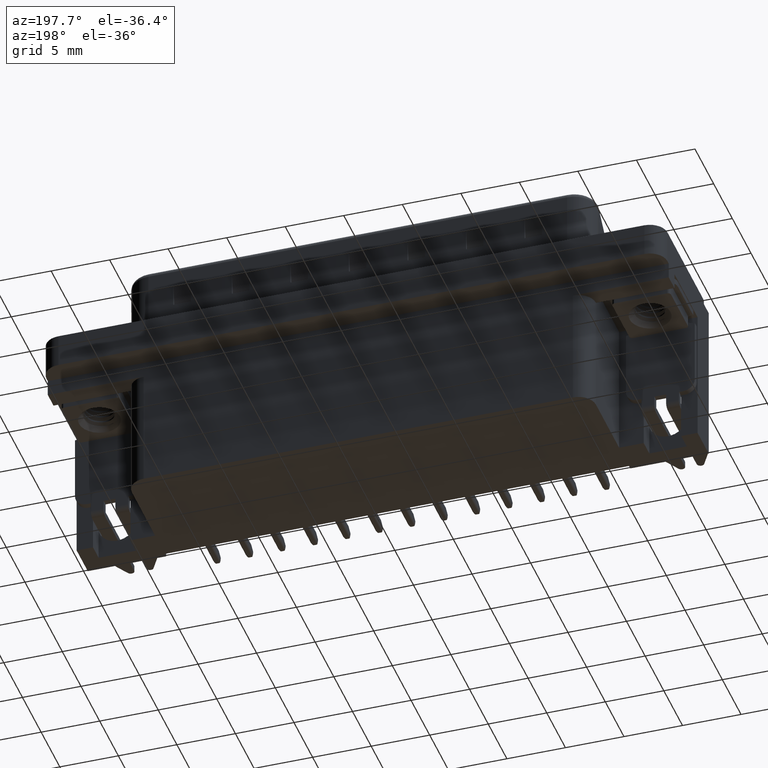
[diagram: clean part render]
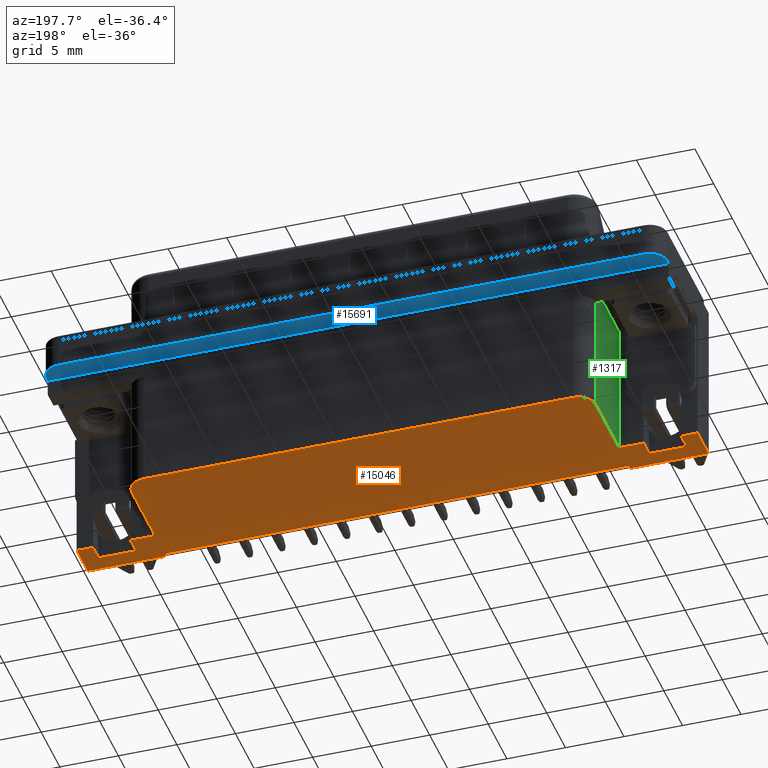
[diagram: same view with three faces highlighted in distinct colors, each labeled with its STEP entity id]
A machine part, auxiliary view with three faces highlighted in distinct colors.
Their STEP definitions:

[orange] entity #15046 — the highlighted planar face has unit normal (0, 0, -1).
#58 = FACE_OUTER_BOUND ( 'NONE', #14990, .T. ) ;
#814 = VERTEX_POINT ( 'NONE', #6002 ) ;
#823 = CARTESIAN_POINT ( 'NONE',  ( 41.84000000000001762, 2.925000000000001599, -14.19999999999999929 ) ) ;
#1076 = ORIENTED_EDGE ( 'NONE', *, *, #11311, .F. ) ;
#1629 = DIRECTION ( 'NONE',  ( 1.000000000000000000, 0.0000000000000000000, 0.0000000000000000000 ) ) ;
#1678 = EDGE_CURVE ( 'NONE', #10604, #19854, #4428, .T. ) ;
#1980 = EDGE_CURVE ( 'NONE', #14074, #8602, #5952, .T. ) ;
#2137 = VERTEX_POINT ( 'NONE', #16696 ) ;
#2357 = CARTESIAN_POINT ( 'NONE',  ( 3.700000000000007727, -3.295000000000000373, -14.19999999999999929 ) ) ;
#2474 = CARTESIAN_POINT ( 'NONE',  ( 3.700000000000007727, -3.295000000000000373, -14.19999999999999929 ) ) ;
#2504 = LINE ( 'NONE', #8083, #13027 ) ;
#2527 = LINE ( 'NONE', #9620, #5312 ) ;
#2614 = EDGE_CURVE ( 'NONE', #10498, #814, #12748, .T. ) ;
#2696 = ORIENTED_EDGE ( 'NONE', *, *, #16626, .T. ) ;
#2744 = VERTEX_POINT ( 'NONE', #4109 ) ;
#3089 = LINE ( 'NONE', #6354, #16194 ) ;
#3150 = LINE ( 'NONE', #14070, #9548 ) ;
#3282 = CARTESIAN_POINT ( 'NONE',  ( 43.34000000000001762, -3.295000000000000373, -14.19999999999999929 ) ) ;
#3321 = CARTESIAN_POINT ( 'NONE',  ( 45.43999999999999773, -3.295000000000001705, -14.19999999999999929 ) ) ;
#3324 = CARTESIAN_POINT ( 'NONE',  ( 41.84000000000001762, 4.425000000000001599, -14.19999999999999929 ) ) ;
#3419 = CARTESIAN_POINT ( 'NONE',  ( 1.600000000000005418, -4.795000000000002593, -14.19999999999999929 ) ) ;
#3775 = ORIENTED_EDGE ( 'NONE', *, *, #16082, .F. ) ;
#4109 = CARTESIAN_POINT ( 'NONE',  ( 3.700000000000008171, 2.925000000000001155, -14.19999999999999929 ) ) ;
#4364 = VECTOR ( 'NONE', #10376, 1000.000000000000000 ) ;
#4428 = LINE ( 'NONE', #6059, #14498 ) ;
#4810 = CARTESIAN_POINT ( 'NONE',  ( -1.599999999999998757, -4.795000000000001705, -14.19999999999999929 ) ) ;
#5142 = ORIENTED_EDGE ( 'NONE', *, *, #6683, .T. ) ;
#5187 = CARTESIAN_POINT ( 'NONE',  ( 3.700000000000012612, -5.925000000000001599, -14.19999999999999929 ) ) ;
#5238 = VECTOR ( 'NONE', #20108, 1000.000000000000000 ) ;
#5252 = CIRCLE ( 'NONE', #18580, 1.500000000000001332 ) ;
#5312 = VECTOR ( 'NONE', #16693, 1000.000000000000000 ) ;
#5360 = EDGE_CURVE ( 'NONE', #13358, #9676, #15003, .T. ) ;
#5569 = DIRECTION ( 'NONE',  ( -1.000000000000000000, 0.0000000000000000000, 0.0000000000000000000 ) ) ;
#5582 = CARTESIAN_POINT ( 'NONE',  ( 5.200000000000007283, 4.425000000000000711, -14.19999999999999929 ) ) ;
#5862 = CARTESIAN_POINT ( 'NONE',  ( 3.700000000000008171, -5.925000000000003375, -14.19999999999999929 ) ) ;
#5952 = LINE ( 'NONE', #5582, #8542 ) ;
#6002 = CARTESIAN_POINT ( 'NONE',  ( 1.599999999999996314, -3.295000000000001705, -14.19999999999999929 ) ) ;
#6059 = CARTESIAN_POINT ( 'NONE',  ( 3.700000000000012612, -5.925000000000001599, -14.19999999999999929 ) ) ;
#6113 = DIRECTION ( 'NONE',  ( -0.0000000000000000000, 1.000000000000000000, -0.0000000000000000000 ) ) ;
#6177 = ORIENTED_EDGE ( 'NONE', *, *, #12837, .F. ) ;
#6321 = CARTESIAN_POINT ( 'NONE',  ( 5.200000000000007283, -4.795000000000002593, -14.19999999999999929 ) ) ;
#6336 = EDGE_CURVE ( 'NONE', #11797, #18032, #2527, .T. ) ;
#6354 = CARTESIAN_POINT ( 'NONE',  ( 43.34000000000001762, -3.295000000000000373, -14.19999999999999929 ) ) ;
#6363 = CARTESIAN_POINT ( 'NONE',  ( 50.03999999999999915, -6.275000000000000355, -14.19999999999999929 ) ) ;
#6683 = EDGE_CURVE ( 'NONE', #11797, #22110, #2504, .T. ) ;
#6891 = LINE ( 'NONE', #3282, #18188 ) ;
#6949 = VECTOR ( 'NONE', #14239, 1000.000000000000000 ) ;
#7263 = DIRECTION ( 'NONE',  ( 0.0000000000000000000, 0.0000000000000000000, -1.000000000000000000 ) ) ;
#7388 = EDGE_CURVE ( 'NONE', #15875, #2744, #11394, .T. ) ;
#7501 = PLANE ( 'NONE',  #9687 ) ;
#7739 = CARTESIAN_POINT ( 'NONE',  ( 3.700000000000007727, -3.295000000000000373, -14.19999999999999929 ) ) ;
#8083 = CARTESIAN_POINT ( 'NONE',  ( 48.64000000000000767, -4.795000000000001705, -14.19999999999999929 ) ) ;
#8165 = LINE ( 'NONE', #10985, #14396 ) ;
#8437 = EDGE_CURVE ( 'NONE', #22110, #13521, #3089, .T. ) ;
#8484 = VECTOR ( 'NONE', #10902, 1000.000000000000000 ) ;
#8542 = VECTOR ( 'NONE', #1629, 1000.000000000000000 ) ;
#8602 = VERTEX_POINT ( 'NONE', #3324 ) ;
#8717 = VERTEX_POINT ( 'NONE', #10639 ) ;
#9448 = ORIENTED_EDGE ( 'NONE', *, *, #21922, .T. ) ;
#9535 = ORIENTED_EDGE ( 'NONE', *, *, #2614, .T. ) ;
#9548 = VECTOR ( 'NONE', #10352, 1000.000000000000000 ) ;
#9620 = CARTESIAN_POINT ( 'NONE',  ( 5.200000000000007283, -4.795000000000002593, -14.19999999999999929 ) ) ;
#9676 = VERTEX_POINT ( 'NONE', #14713 ) ;
#9687 = AXIS2_PLACEMENT_3D ( 'NONE', #14562, #7263, #19430 ) ;
#10017 = ORIENTED_EDGE ( 'NONE', *, *, #11577, .T. ) ;
#10141 = VERTEX_POINT ( 'NONE', #18056 ) ;
#10352 = DIRECTION ( 'NONE',  ( 1.000000000000000000, 3.883709274574940726E-16, -0.0000000000000000000 ) ) ;
#10366 = DIRECTION ( 'NONE',  ( -0.0000000000000000000, -1.000000000000000000, -0.0000000000000000000 ) ) ;
#10376 = DIRECTION ( 'NONE',  ( -2.910609859021490822E-16, 1.000000000000000000, -0.0000000000000000000 ) ) ;
#10498 = VERTEX_POINT ( 'NONE', #3419 ) ;
#10604 = VERTEX_POINT ( 'NONE', #5862 ) ;
#10639 = CARTESIAN_POINT ( 'NONE',  ( 43.34000000000000341, -5.925000000000009592, -14.19999999999999929 ) ) ;
#10764 = DIRECTION ( 'NONE',  ( 1.000000000000000000, 3.883709274574940726E-16, -0.0000000000000000000 ) ) ;
#10885 = CARTESIAN_POINT ( 'NONE',  ( 1.599999999999996314, -4.795000000000001705, -14.19999999999999929 ) ) ;
#10902 = DIRECTION ( 'NONE',  ( 1.000000000000000000, -3.883709274574951573E-16, 0.0000000000000000000 ) ) ;
#10985 = CARTESIAN_POINT ( 'NONE',  ( 43.34000000000000341, -5.925000000000009592, -14.19999999999999929 ) ) ;
#11046 = DIRECTION ( 'NONE',  ( -1.970636860084006915E-16, -1.000000000000000000, -0.0000000000000000000 ) ) ;
#11311 = EDGE_CURVE ( 'NONE', #18032, #19522, #15975, .T. ) ;
#11384 = DIRECTION ( 'NONE',  ( -1.000000000000000000, 0.0000000000000000000, 0.0000000000000000000 ) ) ;
#11394 = LINE ( 'NONE', #2357, #16506 ) ;
#11414 = LINE ( 'NONE', #21986, #5238 ) ;
#11436 = CARTESIAN_POINT ( 'NONE',  ( -2.999999999999993339, -3.295000000000002593, -14.19999999999999929 ) ) ;
#11544 = EDGE_CURVE ( 'NONE', #19139, #9676, #13972, .T. ) ;
#11571 = EDGE_CURVE ( 'NONE', #2137, #13358, #12115, .T. ) ;
#11577 = EDGE_CURVE ( 'NONE', #814, #15875, #3150, .T. ) ;
#11748 = VERTEX_POINT ( 'NONE', #12563 ) ;
#11760 = DIRECTION ( 'NONE',  ( 1.000000000000000000, -0.0000000000000000000, 0.0000000000000000000 ) ) ;
#11797 = VERTEX_POINT ( 'NONE', #12686 ) ;
#12115 = LINE ( 'NONE', #22796, #4364 ) ;
#12190 = ORIENTED_EDGE ( 'NONE', *, *, #6336, .F. ) ;
#12541 = VERTEX_POINT ( 'NONE', #6363 ) ;
#12563 = CARTESIAN_POINT ( 'NONE',  ( 43.34000000000001762, 2.925000000000001599, -14.19999999999999929 ) ) ;
#12686 = CARTESIAN_POINT ( 'NONE',  ( 48.64000000000000767, -4.795000000000002593, -14.19999999999999929 ) ) ;
#12748 = LINE ( 'NONE', #10885, #13046 ) ;
#12771 = ORIENTED_EDGE ( 'NONE', *, *, #1980, .T. ) ;
#12837 = EDGE_CURVE ( 'NONE', #8717, #10141, #8165, .T. ) ;
#12953 = VECTOR ( 'NONE', #19304, 1000.000000000000000 ) ;
#13017 = ORIENTED_EDGE ( 'NONE', *, *, #15970, .T. ) ;
#13027 = VECTOR ( 'NONE', #6113, 1000.000000000000000 ) ;
#13042 = DIRECTION ( 'NONE',  ( 6.972361237848901083E-17, 1.000000000000000000, 0.0000000000000000000 ) ) ;
#13046 = VECTOR ( 'NONE', #19801, 1000.000000000000000 ) ;
#13150 = CARTESIAN_POINT ( 'NONE',  ( 48.64000000000000767, -3.295000000000001705, -14.19999999999999929 ) ) ;
#13153 = ORIENTED_EDGE ( 'NONE', *, *, #7388, .T. ) ;
#13202 = DIRECTION ( 'NONE',  ( 1.000000000000000000, -3.883709274574951573E-16, 0.0000000000000000000 ) ) ;
#13358 = VERTEX_POINT ( 'NONE', #11436 ) ;
#13521 = VERTEX_POINT ( 'NONE', #14110 ) ;
#13972 = LINE ( 'NONE', #4810, #20645 ) ;
#13974 = CARTESIAN_POINT ( 'NONE',  ( 3.700000000000012612, -6.275000000000001243, -14.19999999999999929 ) ) ;
#14030 = CARTESIAN_POINT ( 'NONE',  ( 50.03999999999999915, -6.275000000000000355, -14.19999999999999929 ) ) ;
#14070 = CARTESIAN_POINT ( 'NONE',  ( 3.700000000000007727, -3.295000000000000373, -14.19999999999999929 ) ) ;
#14074 = VERTEX_POINT ( 'NONE', #18213 ) ;
#14110 = CARTESIAN_POINT ( 'NONE',  ( 50.03999999999999915, -3.295000000000002593, -14.19999999999999929 ) ) ;
#14149 = LINE ( 'NONE', #14030, #19213 ) ;
#14239 = DIRECTION ( 'NONE',  ( -0.0000000000000000000, 1.000000000000000000, -0.0000000000000000000 ) ) ;
#14396 = VECTOR ( 'NONE', #14586, 1000.000000000000000 ) ;
#14498 = VECTOR ( 'NONE', #11046, 1000.000000000000000 ) ;
#14562 = CARTESIAN_POINT ( 'NONE',  ( 5.200000000000007283, 2.925000000000001155, -14.19999999999999929 ) ) ;
#14586 = DIRECTION ( 'NONE',  ( -1.970636860084006915E-16, -1.000000000000000000, -0.0000000000000000000 ) ) ;
#14713 = CARTESIAN_POINT ( 'NONE',  ( -1.599999999999998757, -3.295000000000001705, -14.19999999999999929 ) ) ;
#14716 = LINE ( 'NONE', #17864, #8484 ) ;
#14981 = DIRECTION ( 'NONE',  ( 0.0000000000000000000, 0.0000000000000000000, -1.000000000000000000 ) ) ;
#14988 = ORIENTED_EDGE ( 'NONE', *, *, #8437, .T. ) ;
#14990 = EDGE_LOOP ( 'NONE', ( #1076, #12190, #5142, #14988, #20549, #9448, #6177, #3775, #18195, #17356, #20646, #17487, #15041, #19402, #9535, #10017, #13153, #13017, #12771, #18686, #2696, #18689 ) ) ;
#15003 = LINE ( 'NONE', #2474, #15513 ) ;
#15041 = ORIENTED_EDGE ( 'NONE', *, *, #11544, .F. ) ;
#15046 = ADVANCED_FACE ( 'NONE', ( #58 ), #7501, .T. ) ;
#15152 = DIRECTION ( 'NONE',  ( 0.0000000000000000000, 0.0000000000000000000, -1.000000000000000000 ) ) ;
#15465 = VERTEX_POINT ( 'NONE', #16504 ) ;
#15482 = LINE ( 'NONE', #6321, #16456 ) ;
#15513 = VECTOR ( 'NONE', #10764, 1000.000000000000000 ) ;
#15524 = EDGE_CURVE ( 'NONE', #8602, #11748, #5252, .T. ) ;
#15731 = DIRECTION ( 'NONE',  ( 1.000000000000000000, -1.969287497955508259E-16, 0.0000000000000000000 ) ) ;
#15875 = VERTEX_POINT ( 'NONE', #7739 ) ;
#15970 = EDGE_CURVE ( 'NONE', #2744, #14074, #22245, .T. ) ;
#15975 = LINE ( 'NONE', #17500, #6949 ) ;
#16001 = VECTOR ( 'NONE', #15731, 1000.000000000000000 ) ;
#16082 = EDGE_CURVE ( 'NONE', #10604, #8717, #22459, .T. ) ;
#16194 = VECTOR ( 'NONE', #13202, 1000.000000000000000 ) ;
#16413 = EDGE_CURVE ( 'NONE', #13521, #12541, #11414, .T. ) ;
#16456 = VECTOR ( 'NONE', #11760, 1000.000000000000000 ) ;
#16504 = CARTESIAN_POINT ( 'NONE',  ( 43.34000000000001762, -3.295000000000000373, -14.19999999999999929 ) ) ;
#16506 = VECTOR ( 'NONE', #13042, 1000.000000000000000 ) ;
#16626 = EDGE_CURVE ( 'NONE', #11748, #15465, #6891, .T. ) ;
#16693 = DIRECTION ( 'NONE',  ( -1.000000000000000000, 0.0000000000000000000, 0.0000000000000000000 ) ) ;
#16696 = CARTESIAN_POINT ( 'NONE',  ( -2.999999999999992450, -6.275000000000000355, -14.19999999999999929 ) ) ;
#17009 = CARTESIAN_POINT ( 'NONE',  ( 5.200000000000007283, 2.925000000000001155, -14.19999999999999929 ) ) ;
#17043 = CARTESIAN_POINT ( 'NONE',  ( 45.43999999999999773, -4.795000000000001705, -14.19999999999999929 ) ) ;
#17356 = ORIENTED_EDGE ( 'NONE', *, *, #22936, .T. ) ;
#17487 = ORIENTED_EDGE ( 'NONE', *, *, #5360, .T. ) ;
#17500 = CARTESIAN_POINT ( 'NONE',  ( 45.43999999999999773, -4.795000000000001705, -14.19999999999999929 ) ) ;
#17755 = CARTESIAN_POINT ( 'NONE',  ( -1.599999999999998757, -4.795000000000001705, -14.19999999999999929 ) ) ;
#17864 = CARTESIAN_POINT ( 'NONE',  ( 43.34000000000001762, -3.295000000000000373, -14.19999999999999929 ) ) ;
#18032 = VERTEX_POINT ( 'NONE', #17043 ) ;
#18056 = CARTESIAN_POINT ( 'NONE',  ( 43.34000000000000341, -6.275000000000009237, -14.19999999999999929 ) ) ;
#18188 = VECTOR ( 'NONE', #10366, 1000.000000000000000 ) ;
#18195 = ORIENTED_EDGE ( 'NONE', *, *, #1678, .T. ) ;
#18213 = CARTESIAN_POINT ( 'NONE',  ( 5.200000000000007283, 4.425000000000000711, -14.19999999999999929 ) ) ;
#18580 = AXIS2_PLACEMENT_3D ( 'NONE', #823, #14981, #11384 ) ;
#18686 = ORIENTED_EDGE ( 'NONE', *, *, #15524, .T. ) ;
#18689 = ORIENTED_EDGE ( 'NONE', *, *, #21517, .T. ) ;
#19139 = VERTEX_POINT ( 'NONE', #17755 ) ;
#19213 = VECTOR ( 'NONE', #5569, 1000.000000000000000 ) ;
#19304 = DIRECTION ( 'NONE',  ( -1.000000000000000000, 0.0000000000000000000, 0.0000000000000000000 ) ) ;
#19402 = ORIENTED_EDGE ( 'NONE', *, *, #19798, .T. ) ;
#19412 = CARTESIAN_POINT ( 'NONE',  ( 50.03999999999999915, -6.275000000000000355, -14.19999999999999929 ) ) ;
#19430 = DIRECTION ( 'NONE',  ( -1.000000000000000000, 0.0000000000000000000, -0.0000000000000000000 ) ) ;
#19522 = VERTEX_POINT ( 'NONE', #3321 ) ;
#19798 = EDGE_CURVE ( 'NONE', #19139, #10498, #15482, .T. ) ;
#19801 = DIRECTION ( 'NONE',  ( -0.0000000000000000000, 1.000000000000000000, -0.0000000000000000000 ) ) ;
#19854 = VERTEX_POINT ( 'NONE', #13974 ) ;
#20108 = DIRECTION ( 'NONE',  ( 0.0000000000000000000, -1.000000000000000000, 0.0000000000000000000 ) ) ;
#20365 = DIRECTION ( 'NONE',  ( -1.000000000000000000, 0.0000000000000000000, 0.0000000000000000000 ) ) ;
#20549 = ORIENTED_EDGE ( 'NONE', *, *, #16413, .T. ) ;
#20645 = VECTOR ( 'NONE', #21037, 1000.000000000000000 ) ;
#20646 = ORIENTED_EDGE ( 'NONE', *, *, #11571, .T. ) ;
#20815 = LINE ( 'NONE', #19412, #12953 ) ;
#21037 = DIRECTION ( 'NONE',  ( -0.0000000000000000000, 1.000000000000000000, -0.0000000000000000000 ) ) ;
#21194 = AXIS2_PLACEMENT_3D ( 'NONE', #17009, #15152, #20365 ) ;
#21517 = EDGE_CURVE ( 'NONE', #15465, #19522, #14716, .T. ) ;
#21922 = EDGE_CURVE ( 'NONE', #12541, #10141, #20815, .T. ) ;
#21986 = CARTESIAN_POINT ( 'NONE',  ( 50.03999999999999915, -3.295000000000002593, -14.19999999999999929 ) ) ;
#22110 = VERTEX_POINT ( 'NONE', #13150 ) ;
#22245 = CIRCLE ( 'NONE', #21194, 1.499999999999999556 ) ;
#22459 = LINE ( 'NONE', #5187, #16001 ) ;
#22796 = CARTESIAN_POINT ( 'NONE',  ( -2.999999999999993339, -3.295000000000002593, -14.19999999999999929 ) ) ;
#22936 = EDGE_CURVE ( 'NONE', #19854, #2137, #14149, .T. ) ;

[blue] entity #15691 — the highlighted planar face has unit normal (0, 0, -1).
#309 = CARTESIAN_POINT ( 'NONE',  ( 50.03999999999999915, 4.775000000000000355, -2.500000000000000000 ) ) ;
#594 = CARTESIAN_POINT ( 'NONE',  ( -1.499999999999992228, 6.275000000000000355, -2.500000000000000000 ) ) ;
#1357 = CARTESIAN_POINT ( 'NONE',  ( 48.53999999999999915, 4.775000000000000355, -2.500000000000000000 ) ) ;
#1725 = DIRECTION ( 'NONE',  ( -1.000000000000000000, -0.0000000000000000000, -0.0000000000000000000 ) ) ;
#1927 = EDGE_LOOP ( 'NONE', ( #17170, #6090, #8170, #11837, #4834, #18095 ) ) ;
#2277 = AXIS2_PLACEMENT_3D ( 'NONE', #20651, #11833, #4765 ) ;
#4765 = DIRECTION ( 'NONE',  ( -1.000000000000000000, 0.0000000000000000000, 0.0000000000000000000 ) ) ;
#4805 = AXIS2_PLACEMENT_3D ( 'NONE', #1357, #15641, #20845 ) ;
#4834 = ORIENTED_EDGE ( 'NONE', *, *, #5113, .F. ) ;
#4937 = EDGE_CURVE ( 'NONE', #21823, #12764, #11009, .T. ) ;
#5113 = EDGE_CURVE ( 'NONE', #12764, #18884, #7722, .T. ) ;
#5734 = VERTEX_POINT ( 'NONE', #11713 ) ;
#6090 = ORIENTED_EDGE ( 'NONE', *, *, #8881, .F. ) ;
#6408 = CARTESIAN_POINT ( 'NONE',  ( 48.53999999999999915, 6.275000000000001243, -2.500000000000000000 ) ) ;
#6618 = VECTOR ( 'NONE', #21914, 1000.000000000000000 ) ;
#7273 = CARTESIAN_POINT ( 'NONE',  ( -2.999999999999992450, -6.275000000000000355, -2.500000000000000000 ) ) ;
#7722 = CIRCLE ( 'NONE', #4805, 1.500000000000001332 ) ;
#7762 = CARTESIAN_POINT ( 'NONE',  ( -2.999999999999993339, 4.425000000000000711, -2.500000000000000000 ) ) ;
#8064 = VECTOR ( 'NONE', #1725, 1000.000000000000000 ) ;
#8170 = ORIENTED_EDGE ( 'NONE', *, *, #12695, .F. ) ;
#8881 = EDGE_CURVE ( 'NONE', #5734, #19309, #9578, .T. ) ;
#9130 = DIRECTION ( 'NONE',  ( -1.000000000000000000, 0.0000000000000000000, 0.0000000000000000000 ) ) ;
#9274 = DIRECTION ( 'NONE',  ( 0.0000000000000000000, 1.000000000000000000, 0.0000000000000000000 ) ) ;
#9578 = LINE ( 'NONE', #7273, #10634 ) ;
#9589 = EDGE_CURVE ( 'NONE', #18884, #16922, #15767, .T. ) ;
#10634 = VECTOR ( 'NONE', #14339, 1000.000000000000000 ) ;
#10670 = CARTESIAN_POINT ( 'NONE',  ( -1.499999999999992228, 6.275000000000000355, -2.500000000000000000 ) ) ;
#11009 = LINE ( 'NONE', #18083, #11299 ) ;
#11299 = VECTOR ( 'NONE', #9274, 1000.000000000000000 ) ;
#11713 = CARTESIAN_POINT ( 'NONE',  ( -2.999999999999992450, 4.775000000000000355, -2.500000000000000000 ) ) ;
#11833 = DIRECTION ( 'NONE',  ( -0.0000000000000000000, 0.0000000000000000000, -1.000000000000000000 ) ) ;
#11837 = ORIENTED_EDGE ( 'NONE', *, *, #9589, .F. ) ;
#12184 = CIRCLE ( 'NONE', #19588, 1.500000000000000000 ) ;
#12427 = EDGE_CURVE ( 'NONE', #19309, #21823, #14948, .T. ) ;
#12695 = EDGE_CURVE ( 'NONE', #16922, #5734, #12184, .T. ) ;
#12764 = VERTEX_POINT ( 'NONE', #309 ) ;
#14339 = DIRECTION ( 'NONE',  ( -0.0000000000000000000, -1.000000000000000000, -0.0000000000000000000 ) ) ;
#14948 = LINE ( 'NONE', #7762, #6618 ) ;
#15641 = DIRECTION ( 'NONE',  ( 0.0000000000000000000, 0.0000000000000000000, 1.000000000000000000 ) ) ;
#15691 = ADVANCED_FACE ( 'NONE', ( #19570 ), #16950, .T. ) ;
#15750 = DIRECTION ( 'NONE',  ( 0.0000000000000000000, 0.0000000000000000000, 1.000000000000000000 ) ) ;
#15767 = LINE ( 'NONE', #10670, #8064 ) ;
#16794 = CARTESIAN_POINT ( 'NONE',  ( -2.999999999999992450, 4.425000000000000711, -2.500000000000000000 ) ) ;
#16922 = VERTEX_POINT ( 'NONE', #594 ) ;
#16950 = PLANE ( 'NONE',  #2277 ) ;
#17170 = ORIENTED_EDGE ( 'NONE', *, *, #12427, .F. ) ;
#17607 = CARTESIAN_POINT ( 'NONE',  ( -1.499999999999992228, 4.775000000000000355, -2.500000000000000000 ) ) ;
#18083 = CARTESIAN_POINT ( 'NONE',  ( 50.03999999999999915, -6.275000000000000355, -2.500000000000000000 ) ) ;
#18095 = ORIENTED_EDGE ( 'NONE', *, *, #4937, .F. ) ;
#18884 = VERTEX_POINT ( 'NONE', #6408 ) ;
#19309 = VERTEX_POINT ( 'NONE', #16794 ) ;
#19570 = FACE_OUTER_BOUND ( 'NONE', #1927, .T. ) ;
#19588 = AXIS2_PLACEMENT_3D ( 'NONE', #17607, #15750, #9130 ) ;
#20651 = CARTESIAN_POINT ( 'NONE',  ( -1.499999999999992228, 4.775000000000000355, -2.500000000000000000 ) ) ;
#20845 = DIRECTION ( 'NONE',  ( -1.000000000000000000, 0.0000000000000000000, 0.0000000000000000000 ) ) ;
#21823 = VERTEX_POINT ( 'NONE', #22722 ) ;
#21914 = DIRECTION ( 'NONE',  ( 1.000000000000000000, 0.0000000000000000000, 0.0000000000000000000 ) ) ;
#22722 = CARTESIAN_POINT ( 'NONE',  ( 50.03999999999999915, 4.425000000000000711, -2.500000000000000000 ) ) ;

[green] entity #1317 — the highlighted planar face has unit normal (1, -0, 0).
#103 = CARTESIAN_POINT ( 'NONE',  ( 3.700000000000008171, 2.895000000000000018, -3.899999999999999911 ) ) ;
#713 = ORIENTED_EDGE ( 'NONE', *, *, #8959, .F. ) ;
#853 = EDGE_LOOP ( 'NONE', ( #1640, #14170, #7851, #713, #15901, #9807 ) ) ;
#1317 = ADVANCED_FACE ( 'NONE', ( #4119 ), #2375, .F. ) ;
#1426 = VECTOR ( 'NONE', #17711, 1000.000000000000000 ) ;
#1640 = ORIENTED_EDGE ( 'NONE', *, *, #2708, .T. ) ;
#2357 = CARTESIAN_POINT ( 'NONE',  ( 3.700000000000007727, -3.295000000000000373, -14.19999999999999929 ) ) ;
#2375 = PLANE ( 'NONE',  #22112 ) ;
#2708 = EDGE_CURVE ( 'NONE', #19517, #6735, #20681, .T. ) ;
#2744 = VERTEX_POINT ( 'NONE', #4109 ) ;
#3579 = VECTOR ( 'NONE', #20696, 1000.000000000000000 ) ;
#4109 = CARTESIAN_POINT ( 'NONE',  ( 3.700000000000008171, 2.925000000000001155, -14.19999999999999929 ) ) ;
#4119 = FACE_OUTER_BOUND ( 'NONE', #853, .T. ) ;
#5324 = CARTESIAN_POINT ( 'NONE',  ( 3.700000000000007727, -3.295000000000000373, -14.19999999999999929 ) ) ;
#5736 = DIRECTION ( 'NONE',  ( 0.0000000000000000000, 0.0000000000000000000, -1.000000000000000000 ) ) ;
#6735 = VERTEX_POINT ( 'NONE', #20127 ) ;
#6870 = VECTOR ( 'NONE', #14200, 1000.000000000000000 ) ;
#7262 = EDGE_CURVE ( 'NONE', #21599, #13117, #19755, .T. ) ;
#7354 = EDGE_CURVE ( 'NONE', #6735, #21599, #14546, .T. ) ;
#7388 = EDGE_CURVE ( 'NONE', #15875, #2744, #11394, .T. ) ;
#7739 = CARTESIAN_POINT ( 'NONE',  ( 3.700000000000007727, -3.295000000000000373, -14.19999999999999929 ) ) ;
#7851 = ORIENTED_EDGE ( 'NONE', *, *, #7262, .T. ) ;
#7861 = CARTESIAN_POINT ( 'NONE',  ( 3.700000000000007727, -3.295000000000000373, -2.500000000000000000 ) ) ;
#7957 = CARTESIAN_POINT ( 'NONE',  ( 3.700000000000008171, 2.925000000000001155, -14.19999999999999929 ) ) ;
#8959 = EDGE_CURVE ( 'NONE', #2744, #13117, #15022, .T. ) ;
#9788 = DIRECTION ( 'NONE',  ( 1.000000000000000000, -6.972361237848901083E-17, 0.0000000000000000000 ) ) ;
#9807 = ORIENTED_EDGE ( 'NONE', *, *, #12750, .T. ) ;
#11394 = LINE ( 'NONE', #2357, #16506 ) ;
#12272 = CARTESIAN_POINT ( 'NONE',  ( 3.700000000000008171, -3.295000000000000373, -2.500000000000000000 ) ) ;
#12750 = EDGE_CURVE ( 'NONE', #15875, #19517, #21207, .T. ) ;
#13042 = DIRECTION ( 'NONE',  ( 6.972361237848901083E-17, 1.000000000000000000, 0.0000000000000000000 ) ) ;
#13117 = VERTEX_POINT ( 'NONE', #13549 ) ;
#13549 = CARTESIAN_POINT ( 'NONE',  ( 3.700000000000008171, 2.925000000000001155, -3.899999999999999023 ) ) ;
#14170 = ORIENTED_EDGE ( 'NONE', *, *, #7354, .T. ) ;
#14200 = DIRECTION ( 'NONE',  ( 6.972361237848901083E-17, 1.000000000000000000, 0.0000000000000000000 ) ) ;
#14546 = LINE ( 'NONE', #21635, #15385 ) ;
#15022 = LINE ( 'NONE', #7957, #3579 ) ;
#15385 = VECTOR ( 'NONE', #5736, 1000.000000000000000 ) ;
#15875 = VERTEX_POINT ( 'NONE', #7739 ) ;
#15901 = ORIENTED_EDGE ( 'NONE', *, *, #7388, .F. ) ;
#16506 = VECTOR ( 'NONE', #13042, 1000.000000000000000 ) ;
#16756 = CARTESIAN_POINT ( 'NONE',  ( 3.700000000000007727, -3.295000000000000373, -14.19999999999999929 ) ) ;
#17711 = DIRECTION ( 'NONE',  ( -0.0000000000000000000, -0.0000000000000000000, 1.000000000000000000 ) ) ;
#17907 = CARTESIAN_POINT ( 'NONE',  ( 3.700000000000008171, -2.579773658004099120E-16, -3.899999999999999911 ) ) ;
#18152 = DIRECTION ( 'NONE',  ( 6.972361237848901083E-17, 1.000000000000000000, 0.0000000000000000000 ) ) ;
#18515 = DIRECTION ( 'NONE',  ( 6.972361237848901083E-17, 1.000000000000000000, 0.0000000000000000000 ) ) ;
#19517 = VERTEX_POINT ( 'NONE', #12272 ) ;
#19755 = LINE ( 'NONE', #17907, #6870 ) ;
#20127 = CARTESIAN_POINT ( 'NONE',  ( 3.700000000000008171, 2.895000000000000018, -2.500000000000000000 ) ) ;
#20681 = LINE ( 'NONE', #7861, #20809 ) ;
#20696 = DIRECTION ( 'NONE',  ( -0.0000000000000000000, -0.0000000000000000000, 1.000000000000000000 ) ) ;
#20809 = VECTOR ( 'NONE', #18515, 1000.000000000000000 ) ;
#21207 = LINE ( 'NONE', #5324, #1426 ) ;
#21599 = VERTEX_POINT ( 'NONE', #103 ) ;
#21635 = CARTESIAN_POINT ( 'NONE',  ( 3.700000000000008171, 2.895000000000000018, -3.899999999999999911 ) ) ;
#22112 = AXIS2_PLACEMENT_3D ( 'NONE', #16756, #9788, #18152 ) ;